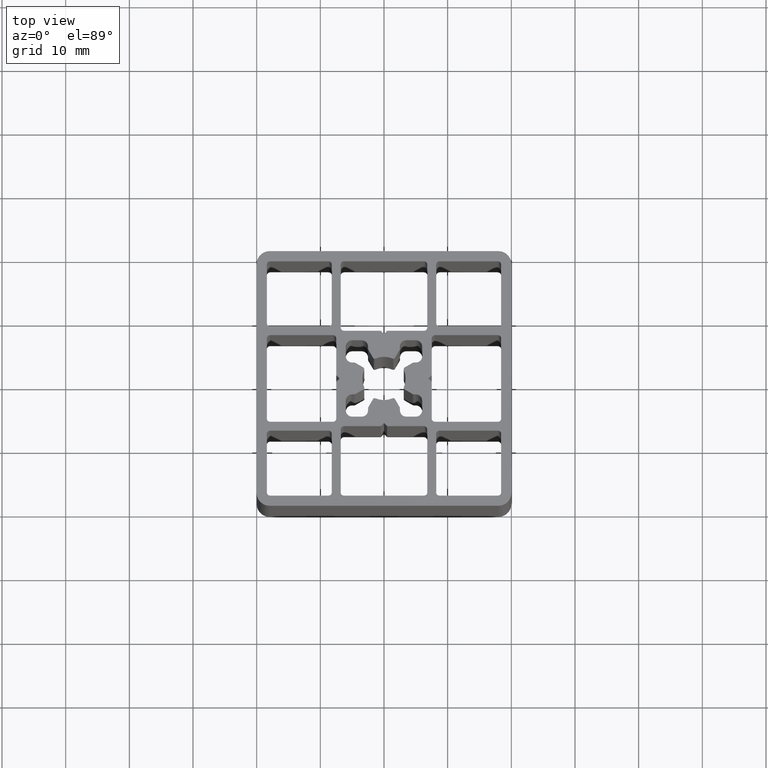
[diagram: clean part render]
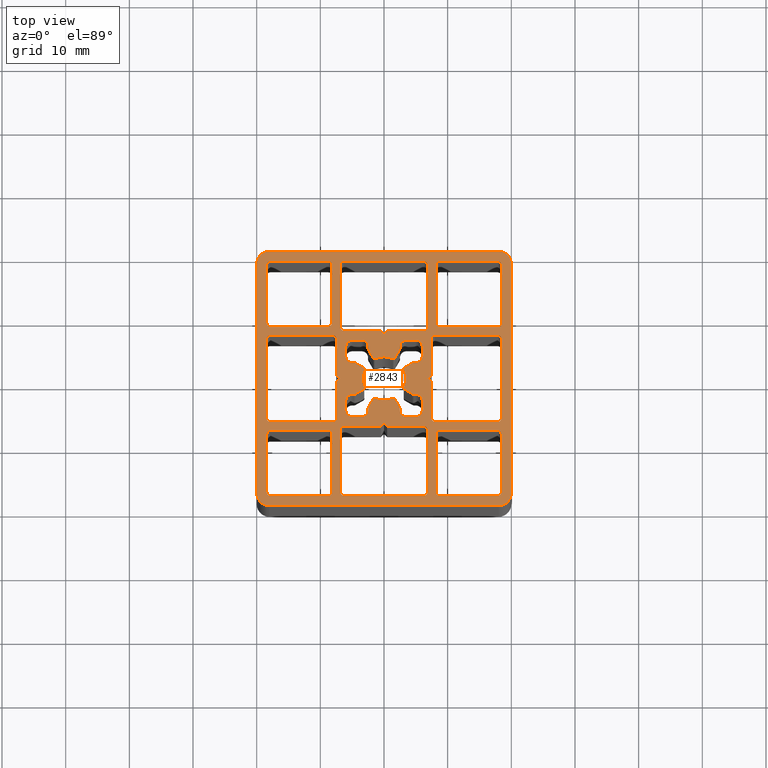
[diagram: same view with one face highlighted and labeled with its STEP entity id]
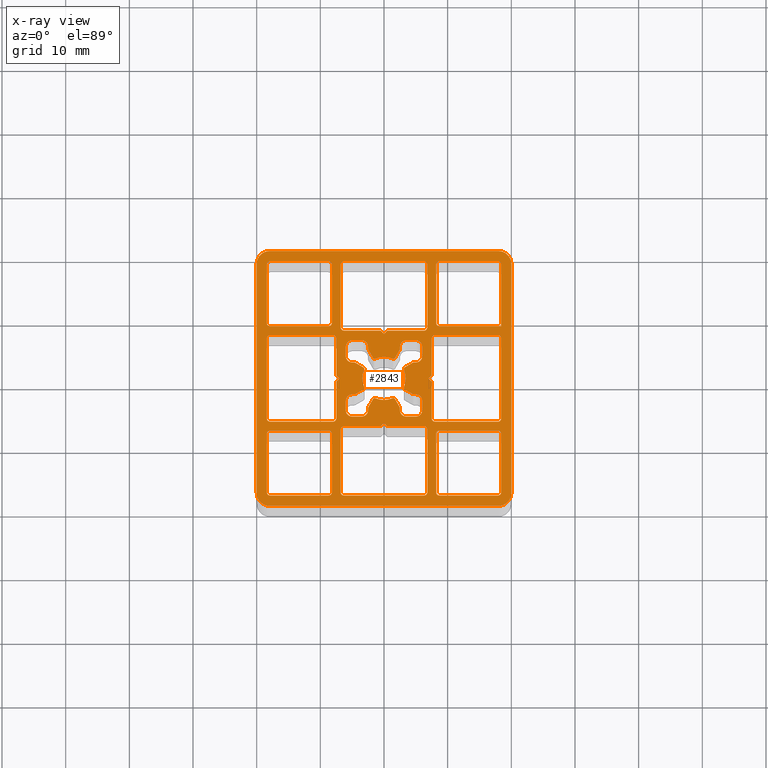
[diagram: x-ray of the same camera — body ghosted, the highlighted face saturated]
A machine part, top view. The second image highlights one B-rep face of the part: STEP entity #2843.
The next image is the same camera in x-ray: the body ghosted, the highlighted face saturated — about 0% of this face is hidden behind the body in this view.
In plain terms, the highlighted planar face has unit normal (0, 0, 1).
Its self-contained STEP definition (entity closure, byte-faithful):
#24=FACE_BOUND('',#525,.T.);
#25=FACE_BOUND('',#526,.T.);
#26=FACE_BOUND('',#527,.T.);
#27=FACE_BOUND('',#528,.T.);
#28=FACE_BOUND('',#529,.T.);
#29=FACE_BOUND('',#530,.T.);
#30=FACE_BOUND('',#531,.T.);
#31=FACE_BOUND('',#532,.T.);
#32=FACE_BOUND('',#533,.T.);
#33=CIRCLE('',#2848,0.5);
#35=CIRCLE('',#2855,0.5);
#37=CIRCLE('',#2859,0.5);
#39=CIRCLE('',#2863,0.5);
#41=CIRCLE('',#2867,0.5);
#43=CIRCLE('',#2871,0.5);
#45=CIRCLE('',#2875,0.5);
#47=CIRCLE('',#2882,0.5);
#49=CIRCLE('',#2889,0.5);
#51=CIRCLE('',#2893,0.5);
#53=CIRCLE('',#2897,0.5);
#55=CIRCLE('',#2901,0.5);
#57=CIRCLE('',#2905,0.5);
#59=CIRCLE('',#2909,0.5);
#61=CIRCLE('',#2914,0.5);
#63=CIRCLE('',#2917,0.5);
#65=CIRCLE('',#2921,0.5);
#67=CIRCLE('',#2925,0.5);
#69=CIRCLE('',#2929,0.5);
#71=CIRCLE('',#2933,3.40000593118441);
#73=CIRCLE('',#2936,0.299999841623047);
#75=CIRCLE('',#2940,0.5);
#77=CIRCLE('',#2944,0.999999252925074);
#79=CIRCLE('',#2948,0.999999252925074);
#81=CIRCLE('',#2952,0.999999252925074);
#83=CIRCLE('',#2956,0.5);
#85=CIRCLE('',#2960,0.299999841623044);
#87=CIRCLE('',#2963,3.40000593118441);
#89=CIRCLE('',#2966,0.299999841622974);
#91=CIRCLE('',#2970,0.5);
#93=CIRCLE('',#2974,0.999999252925074);
#95=CIRCLE('',#2978,0.999999252925074);
#97=CIRCLE('',#2982,0.999999252925074);
#99=CIRCLE('',#2986,0.5);
#101=CIRCLE('',#2990,0.299999841622974);
#103=CIRCLE('',#2993,3.40000593118445);
#105=CIRCLE('',#2996,0.299999841622974);
#107=CIRCLE('',#3000,0.5);
#109=CIRCLE('',#3004,0.999999252925074);
#111=CIRCLE('',#3008,0.999999252925074);
#113=CIRCLE('',#3012,0.999999252925074);
#115=CIRCLE('',#3016,0.5);
#117=CIRCLE('',#3020,0.299999841622974);
#119=CIRCLE('',#3023,3.40000593118445);
#121=CIRCLE('',#3026,0.299999841622974);
#123=CIRCLE('',#3030,0.5);
#125=CIRCLE('',#3034,0.999999252925074);
#127=CIRCLE('',#3038,0.999999252925074);
#129=CIRCLE('',#3042,0.999999252925074);
#131=CIRCLE('',#3046,0.5);
#133=CIRCLE('',#3050,0.299999841622974);
#135=CIRCLE('',#3054,0.5);
#137=CIRCLE('',#3058,0.5);
#139=CIRCLE('',#3062,0.5);
#141=CIRCLE('',#3066,0.5);
#143=CIRCLE('',#3069,0.5);
#145=CIRCLE('',#3073,0.5);
#147=CIRCLE('',#3077,0.5);
#149=CIRCLE('',#3081,0.5);
#151=CIRCLE('',#3085,0.5);
#153=CIRCLE('',#3089,0.5);
#155=CIRCLE('',#3093,0.5);
#157=CIRCLE('',#3100,0.5);
#159=CIRCLE('',#3104,1.99999999999999);
#161=CIRCLE('',#3108,2.);
#163=CIRCLE('',#3112,2.);
#165=CIRCLE('',#3116,2.);
#374=FACE_OUTER_BOUND('',#524,.T.);
#524=EDGE_LOOP('',(#2490,#2491,#2492,#2493,#2494,#2495,#2496,#2497));
#525=EDGE_LOOP('',(#2498,#2499,#2500,#2501,#2502,#2503,#2504,#2505,#2506,
#2507,#2508));
#526=EDGE_LOOP('',(#2509,#2510,#2511,#2512,#2513,#2514,#2515,#2516,#2517,
#2518,#2519));
#527=EDGE_LOOP('',(#2520,#2521,#2522,#2523,#2524,#2525,#2526,#2527,#2528,
#2529,#2530));
#528=EDGE_LOOP('',(#2531,#2532,#2533,#2534,#2535,#2536,#2537));
#529=EDGE_LOOP('',(#2538,#2539,#2540,#2541,#2542,#2543,#2544,#2545));
#530=EDGE_LOOP('',(#2546,#2547,#2548,#2549,#2550,#2551,#2552,#2553,#2554,
#2555,#2556,#2557,#2558,#2559,#2560,#2561,#2562,#2563,#2564,#2565,#2566,
#2567,#2568,#2569,#2570,#2571,#2572,#2573,#2574,#2575,#2576,#2577,#2578,
#2579,#2580,#2581,#2582,#2583,#2584,#2585,#2586,#2587,#2588,#2589,#2590,
#2591,#2592,#2593,#2594,#2595,#2596,#2597,#2598,#2599,#2600,#2601));
#531=EDGE_LOOP('',(#2602,#2603,#2604,#2605,#2606,#2607,#2608,#2609));
#532=EDGE_LOOP('',(#2610,#2611,#2612,#2613,#2614,#2615,#2616,#2617));
#533=EDGE_LOOP('',(#2618,#2619,#2620,#2621,#2622,#2623,#2624,#2625,#2626,
#2627,#2628));
#534=LINE('',#3960,#817);
#539=LINE('',#3974,#822);
#542=LINE('',#3980,#825);
#545=LINE('',#3986,#828);
#548=LINE('',#3992,#831);
#552=LINE('',#4004,#835);
#556=LINE('',#4016,#839);
#559=LINE('',#4026,#842);
#564=LINE('',#4040,#847);
#568=LINE('',#4052,#851);
#572=LINE('',#4064,#855);
#575=LINE('',#4070,#858);
#578=LINE('',#4076,#861);
#581=LINE('',#4082,#864);
#584=LINE('',#4092,#867);
#588=LINE('',#4100,#871);
#591=LINE('',#4106,#874);
#594=LINE('',#4112,#877);
#598=LINE('',#4124,#881);
#602=LINE('',#4136,#885);
#606=LINE('',#4148,#889);
#609=LINE('',#4158,#892);
#614=LINE('',#4172,#897);
#618=LINE('',#4184,#901);
#621=LINE('',#4190,#904);
#626=LINE('',#4208,#909);
#630=LINE('',#4220,#913);
#634=LINE('',#4232,#917);
#638=LINE('',#4243,#921);
#643=LINE('',#4262,#926);
#647=LINE('',#4274,#930);
#651=LINE('',#4286,#934);
#655=LINE('',#4298,#938);
#659=LINE('',#4310,#942);
#663=LINE('',#4322,#946);
#669=LINE('',#4346,#952);
#673=LINE('',#4358,#956);
#677=LINE('',#4370,#960);
#681=LINE('',#4382,#964);
#685=LINE('',#4394,#968);
#689=LINE('',#4406,#972);
#695=LINE('',#4430,#978);
#699=LINE('',#4442,#982);
#703=LINE('',#4454,#986);
#707=LINE('',#4466,#990);
#711=LINE('',#4478,#994);
#715=LINE('',#4490,#998);
#721=LINE('',#4514,#1004);
#725=LINE('',#4526,#1008);
#729=LINE('',#4538,#1012);
#733=LINE('',#4550,#1016);
#737=LINE('',#4562,#1020);
#741=LINE('',#4574,#1024);
#744=LINE('',#4584,#1027);
#749=LINE('',#4598,#1032);
#753=LINE('',#4610,#1036);
#757=LINE('',#4622,#1040);
#762=LINE('',#4640,#1045);
#766=LINE('',#4652,#1049);
#770=LINE('',#4664,#1053);
#774=LINE('',#4675,#1057);
#778=LINE('',#4688,#1061);
#782=LINE('',#4700,#1065);
#786=LINE('',#4712,#1069);
#789=LINE('',#4718,#1072);
#792=LINE('',#4724,#1075);
#795=LINE('',#4730,#1078);
#799=LINE('',#4741,#1082);
#803=LINE('',#4754,#1086);
#807=LINE('',#4766,#1090);
#811=LINE('',#4778,#1094);
#815=LINE('',#4789,#1098);
#817=VECTOR('',#3125,9.9);
#822=VECTOR('',#3138,5.8);
#825=VECTOR('',#3143,0.707106781186548);
#828=VECTOR('',#3148,0.707106781186548);
#831=VECTOR('',#3153,5.8);
#835=VECTOR('',#3165,9.9);
#839=VECTOR('',#3177,12.6);
#842=VECTOR('',#3188,9.89999999999997);
#847=VECTOR('',#3201,12.6);
#851=VECTOR('',#3213,9.89999999999998);
#855=VECTOR('',#3225,5.8);
#858=VECTOR('',#3230,0.707106781186548);
#861=VECTOR('',#3235,0.707106781186548);
#864=VECTOR('',#3240,5.8);
#867=VECTOR('',#3251,5.8);
#871=VECTOR('',#3257,0.707106781186549);
#874=VECTOR('',#3262,0.707106781186548);
#877=VECTOR('',#3267,5.8);
#881=VECTOR('',#3279,9.89999999999947);
#885=VECTOR('',#3291,12.6);
#889=VECTOR('',#3303,9.89999999999947);
#892=VECTOR('',#3314,9.19999703642828);
#897=VECTOR('',#3327,9.19998645467899);
#901=VECTOR('',#3339,9.69999703642828);
#904=VECTOR('',#3344,9.69998645467898);
#909=VECTOR('',#3363,9.19998688840061);
#913=VECTOR('',#3375,9.20000296360732);
#917=VECTOR('',#3387,9.19998688840061);
#921=VECTOR('',#3399,9.20000296360732);
#926=VECTOR('',#3418,1.406768321986);
#930=VECTOR('',#3430,0.286172336783654);
#934=VECTOR('',#3442,1.50000266055573);
#938=VECTOR('',#3454,1.50001373118524);
#942=VECTOR('',#3466,0.286169696402107);
#946=VECTOR('',#3478,1.40675836489832);
#952=VECTOR('',#3504,1.40677049726241);
#956=VECTOR('',#3516,0.286159021176881);
#960=VECTOR('',#3528,1.49999418880546);
#964=VECTOR('',#3540,1.50000266055573);
#968=VECTOR('',#3552,0.286167796441157);
#972=VECTOR('',#3564,1.40675941589281);
#978=VECTOR('',#3590,1.40676274603769);
#982=VECTOR('',#3602,0.286167884547852);
#986=VECTOR('',#3614,1.50000144932525);
#990=VECTOR('',#3626,1.49999418880546);
#994=VECTOR('',#3638,0.286168280257548);
#998=VECTOR('',#3650,1.40676841399299);
#1004=VECTOR('',#3676,1.40676686370068);
#1008=VECTOR('',#3688,0.286167691653136);
#1012=VECTOR('',#3700,1.50001373118524);
#1016=VECTOR('',#3712,1.50000144932525);
#1020=VECTOR('',#3724,0.286177752594597);
#1024=VECTOR('',#3736,1.40676655397373);
#1027=VECTOR('',#3747,9.20000296360731);
#1032=VECTOR('',#3760,9.19998645467899);
#1036=VECTOR('',#3772,9.20000296360731);
#1040=VECTOR('',#3784,9.19998645467899);
#1045=VECTOR('',#3803,9.19998688840062);
#1049=VECTOR('',#3815,9.19999703642828);
#1053=VECTOR('',#3827,9.19998688840063);
#1057=VECTOR('',#3839,9.19999703642828);
#1061=VECTOR('',#3851,12.6);
#1065=VECTOR('',#3863,9.8999999999994);
#1069=VECTOR('',#3875,5.8);
#1072=VECTOR('',#3880,0.707106781186549);
#1075=VECTOR('',#3885,0.707106781186547);
#1078=VECTOR('',#3890,5.8);
#1082=VECTOR('',#3902,9.8999999999994);
#1086=VECTOR('',#3914,36.);
#1090=VECTOR('',#3926,36.);
#1094=VECTOR('',#3938,36.);
#1098=VECTOR('',#3950,36.);
#1100=VERTEX_POINT('',#3958);
#1101=VERTEX_POINT('',#3959);
#1104=VERTEX_POINT('',#3967);
#1106=VERTEX_POINT('',#3973);
#1108=VERTEX_POINT('',#3979);
#1110=VERTEX_POINT('',#3985);
#1112=VERTEX_POINT('',#3991);
#1114=VERTEX_POINT('',#3997);
#1116=VERTEX_POINT('',#4003);
#1118=VERTEX_POINT('',#4009);
#1120=VERTEX_POINT('',#4015);
#1122=VERTEX_POINT('',#4024);
#1123=VERTEX_POINT('',#4025);
#1126=VERTEX_POINT('',#4033);
#1128=VERTEX_POINT('',#4039);
#1130=VERTEX_POINT('',#4045);
#1132=VERTEX_POINT('',#4051);
#1134=VERTEX_POINT('',#4057);
#1136=VERTEX_POINT('',#4063);
#1138=VERTEX_POINT('',#4069);
#1140=VERTEX_POINT('',#4075);
#1142=VERTEX_POINT('',#4081);
#1144=VERTEX_POINT('',#4090);
#1145=VERTEX_POINT('',#4091);
#1148=VERTEX_POINT('',#4099);
#1150=VERTEX_POINT('',#4105);
#1152=VERTEX_POINT('',#4111);
#1154=VERTEX_POINT('',#4117);
#1156=VERTEX_POINT('',#4123);
#1158=VERTEX_POINT('',#4129);
#1160=VERTEX_POINT('',#4135);
#1162=VERTEX_POINT('',#4141);
#1164=VERTEX_POINT('',#4147);
#1166=VERTEX_POINT('',#4156);
#1167=VERTEX_POINT('',#4157);
#1170=VERTEX_POINT('',#4165);
#1172=VERTEX_POINT('',#4171);
#1174=VERTEX_POINT('',#4177);
#1176=VERTEX_POINT('',#4183);
#1178=VERTEX_POINT('',#4189);
#1180=VERTEX_POINT('',#4198);
#1181=VERTEX_POINT('',#4199);
#1184=VERTEX_POINT('',#4207);
#1186=VERTEX_POINT('',#4213);
#1188=VERTEX_POINT('',#4219);
#1190=VERTEX_POINT('',#4225);
#1192=VERTEX_POINT('',#4231);
#1194=VERTEX_POINT('',#4237);
#1196=VERTEX_POINT('',#4246);
#1197=VERTEX_POINT('',#4247);
#1200=VERTEX_POINT('',#4255);
#1202=VERTEX_POINT('',#4261);
#1204=VERTEX_POINT('',#4267);
#1206=VERTEX_POINT('',#4273);
#1208=VERTEX_POINT('',#4279);
#1210=VERTEX_POINT('',#4285);
#1212=VERTEX_POINT('',#4291);
#1214=VERTEX_POINT('',#4297);
#1216=VERTEX_POINT('',#4303);
#1218=VERTEX_POINT('',#4309);
#1220=VERTEX_POINT('',#4315);
#1222=VERTEX_POINT('',#4321);
#1224=VERTEX_POINT('',#4327);
#1226=VERTEX_POINT('',#4333);
#1228=VERTEX_POINT('',#4339);
#1230=VERTEX_POINT('',#4345);
#1232=VERTEX_POINT('',#4351);
#1234=VERTEX_POINT('',#4357);
#1236=VERTEX_POINT('',#4363);
#1238=VERTEX_POINT('',#4369);
#1240=VERTEX_POINT('',#4375);
#1242=VERTEX_POINT('',#4381);
#1244=VERTEX_POINT('',#4387);
#1246=VERTEX_POINT('',#4393);
#1248=VERTEX_POINT('',#4399);
#1250=VERTEX_POINT('',#4405);
#1252=VERTEX_POINT('',#4411);
#1254=VERTEX_POINT('',#4417);
#1256=VERTEX_POINT('',#4423);
#1258=VERTEX_POINT('',#4429);
#1260=VERTEX_POINT('',#4435);
#1262=VERTEX_POINT('',#4441);
#1264=VERTEX_POINT('',#4447);
#1266=VERTEX_POINT('',#4453);
#1268=VERTEX_POINT('',#4459);
#1270=VERTEX_POINT('',#4465);
#1272=VERTEX_POINT('',#4471);
#1274=VERTEX_POINT('',#4477);
#1276=VERTEX_POINT('',#4483);
#1278=VERTEX_POINT('',#4489);
#1280=VERTEX_POINT('',#4495);
#1282=VERTEX_POINT('',#4501);
#1284=VERTEX_POINT('',#4507);
#1286=VERTEX_POINT('',#4513);
#1288=VERTEX_POINT('',#4519);
#1290=VERTEX_POINT('',#4525);
#1292=VERTEX_POINT('',#4531);
#1294=VERTEX_POINT('',#4537);
#1296=VERTEX_POINT('',#4543);
#1298=VERTEX_POINT('',#4549);
#1300=VERTEX_POINT('',#4555);
#1302=VERTEX_POINT('',#4561);
#1304=VERTEX_POINT('',#4567);
#1306=VERTEX_POINT('',#4573);
#1308=VERTEX_POINT('',#4582);
#1309=VERTEX_POINT('',#4583);
#1312=VERTEX_POINT('',#4591);
#1314=VERTEX_POINT('',#4597);
#1316=VERTEX_POINT('',#4603);
#1318=VERTEX_POINT('',#4609);
#1320=VERTEX_POINT('',#4615);
#1322=VERTEX_POINT('',#4621);
#1324=VERTEX_POINT('',#4630);
#1325=VERTEX_POINT('',#4631);
#1328=VERTEX_POINT('',#4639);
#1330=VERTEX_POINT('',#4645);
#1332=VERTEX_POINT('',#4651);
#1334=VERTEX_POINT('',#4657);
#1336=VERTEX_POINT('',#4663);
#1338=VERTEX_POINT('',#4669);
#1340=VERTEX_POINT('',#4678);
#1341=VERTEX_POINT('',#4679);
#1344=VERTEX_POINT('',#4687);
#1346=VERTEX_POINT('',#4693);
#1348=VERTEX_POINT('',#4699);
#1350=VERTEX_POINT('',#4705);
#1352=VERTEX_POINT('',#4711);
#1354=VERTEX_POINT('',#4717);
#1356=VERTEX_POINT('',#4723);
#1358=VERTEX_POINT('',#4729);
#1360=VERTEX_POINT('',#4735);
#1362=VERTEX_POINT('',#4744);
#1363=VERTEX_POINT('',#4745);
#1366=VERTEX_POINT('',#4753);
#1368=VERTEX_POINT('',#4759);
#1370=VERTEX_POINT('',#4765);
#1372=VERTEX_POINT('',#4771);
#1374=VERTEX_POINT('',#4777);
#1376=VERTEX_POINT('',#4783);
#1378=EDGE_CURVE('',#1100,#1101,#534,.T.);
#1382=EDGE_CURVE('',#1101,#1104,#33,.T.);
#1385=EDGE_CURVE('',#1104,#1106,#539,.T.);
#1388=EDGE_CURVE('',#1106,#1108,#542,.T.);
#1391=EDGE_CURVE('',#1108,#1110,#545,.T.);
#1394=EDGE_CURVE('',#1110,#1112,#548,.T.);
#1397=EDGE_CURVE('',#1112,#1114,#35,.T.);
#1400=EDGE_CURVE('',#1114,#1116,#552,.T.);
#1403=EDGE_CURVE('',#1116,#1118,#37,.T.);
#1406=EDGE_CURVE('',#1118,#1120,#556,.T.);
#1409=EDGE_CURVE('',#1120,#1100,#39,.T.);
#1411=EDGE_CURVE('',#1122,#1123,#559,.T.);
#1415=EDGE_CURVE('',#1123,#1126,#41,.T.);
#1418=EDGE_CURVE('',#1126,#1128,#564,.T.);
#1421=EDGE_CURVE('',#1128,#1130,#43,.T.);
#1424=EDGE_CURVE('',#1130,#1132,#568,.T.);
#1427=EDGE_CURVE('',#1132,#1134,#45,.T.);
#1430=EDGE_CURVE('',#1134,#1136,#572,.T.);
#1433=EDGE_CURVE('',#1136,#1138,#575,.T.);
#1436=EDGE_CURVE('',#1138,#1140,#578,.T.);
#1439=EDGE_CURVE('',#1140,#1142,#581,.T.);
#1442=EDGE_CURVE('',#1142,#1122,#47,.T.);
#1444=EDGE_CURVE('',#1144,#1145,#584,.T.);
#1448=EDGE_CURVE('',#1148,#1144,#588,.T.);
#1451=EDGE_CURVE('',#1150,#1148,#591,.T.);
#1454=EDGE_CURVE('',#1152,#1150,#594,.T.);
#1457=EDGE_CURVE('',#1154,#1152,#49,.T.);
#1460=EDGE_CURVE('',#1156,#1154,#598,.T.);
#1463=EDGE_CURVE('',#1158,#1156,#51,.T.);
#1466=EDGE_CURVE('',#1160,#1158,#602,.T.);
#1469=EDGE_CURVE('',#1162,#1160,#53,.T.);
#1472=EDGE_CURVE('',#1164,#1162,#606,.T.);
#1475=EDGE_CURVE('',#1145,#1164,#55,.T.);
#1477=EDGE_CURVE('',#1166,#1167,#609,.T.);
#1481=EDGE_CURVE('',#1167,#1170,#57,.T.);
#1484=EDGE_CURVE('',#1170,#1172,#614,.T.);
#1487=EDGE_CURVE('',#1172,#1174,#59,.T.);
#1490=EDGE_CURVE('',#1174,#1176,#618,.T.);
#1493=EDGE_CURVE('',#1176,#1178,#621,.T.);
#1496=EDGE_CURVE('',#1178,#1166,#61,.T.);
#1498=EDGE_CURVE('',#1180,#1181,#63,.T.);
#1502=EDGE_CURVE('',#1184,#1180,#626,.T.);
#1505=EDGE_CURVE('',#1186,#1184,#65,.T.);
#1508=EDGE_CURVE('',#1188,#1186,#630,.T.);
#1511=EDGE_CURVE('',#1190,#1188,#67,.T.);
#1514=EDGE_CURVE('',#1192,#1190,#634,.T.);
#1517=EDGE_CURVE('',#1194,#1192,#69,.T.);
#1520=EDGE_CURVE('',#1181,#1194,#638,.T.);
#1522=EDGE_CURVE('',#1196,#1197,#71,.T.);
#1526=EDGE_CURVE('',#1197,#1200,#73,.T.);
#1529=EDGE_CURVE('',#1200,#1202,#643,.T.);
#1532=EDGE_CURVE('',#1202,#1204,#75,.T.);
#1535=EDGE_CURVE('',#1204,#1206,#647,.T.);
#1538=EDGE_CURVE('',#1206,#1208,#77,.T.);
#1541=EDGE_CURVE('',#1208,#1210,#651,.T.);
#1544=EDGE_CURVE('',#1210,#1212,#79,.T.);
#1547=EDGE_CURVE('',#1212,#1214,#655,.T.);
#1550=EDGE_CURVE('',#1214,#1216,#81,.T.);
#1553=EDGE_CURVE('',#1216,#1218,#659,.T.);
#1556=EDGE_CURVE('',#1218,#1220,#83,.T.);
#1559=EDGE_CURVE('',#1220,#1222,#663,.T.);
#1562=EDGE_CURVE('',#1222,#1224,#85,.T.);
#1565=EDGE_CURVE('',#1224,#1226,#87,.T.);
#1568=EDGE_CURVE('',#1226,#1228,#89,.T.);
#1571=EDGE_CURVE('',#1228,#1230,#669,.T.);
#1574=EDGE_CURVE('',#1230,#1232,#91,.T.);
#1577=EDGE_CURVE('',#1232,#1234,#673,.T.);
#1580=EDGE_CURVE('',#1234,#1236,#93,.T.);
#1583=EDGE_CURVE('',#1236,#1238,#677,.T.);
#1586=EDGE_CURVE('',#1238,#1240,#95,.T.);
#1589=EDGE_CURVE('',#1240,#1242,#681,.T.);
#1592=EDGE_CURVE('',#1242,#1244,#97,.T.);
#1595=EDGE_CURVE('',#1244,#1246,#685,.T.);
#1598=EDGE_CURVE('',#1246,#1248,#99,.T.);
#1601=EDGE_CURVE('',#1248,#1250,#689,.T.);
#1604=EDGE_CURVE('',#1250,#1252,#101,.T.);
#1607=EDGE_CURVE('',#1252,#1254,#103,.T.);
#1610=EDGE_CURVE('',#1254,#1256,#105,.T.);
#1613=EDGE_CURVE('',#1256,#1258,#695,.T.);
#1616=EDGE_CURVE('',#1258,#1260,#107,.T.);
#1619=EDGE_CURVE('',#1260,#1262,#699,.T.);
#1622=EDGE_CURVE('',#1262,#1264,#109,.T.);
#1625=EDGE_CURVE('',#1264,#1266,#703,.T.);
#1628=EDGE_CURVE('',#1266,#1268,#111,.T.);
#1631=EDGE_CURVE('',#1268,#1270,#707,.T.);
#1634=EDGE_CURVE('',#1270,#1272,#113,.T.);
#1637=EDGE_CURVE('',#1272,#1274,#711,.T.);
#1640=EDGE_CURVE('',#1274,#1276,#115,.T.);
#1643=EDGE_CURVE('',#1276,#1278,#715,.T.);
#1646=EDGE_CURVE('',#1278,#1280,#117,.T.);
#1649=EDGE_CURVE('',#1280,#1282,#119,.T.);
#1652=EDGE_CURVE('',#1282,#1284,#121,.T.);
#1655=EDGE_CURVE('',#1284,#1286,#721,.T.);
#1658=EDGE_CURVE('',#1286,#1288,#123,.T.);
#1661=EDGE_CURVE('',#1288,#1290,#725,.T.);
#1664=EDGE_CURVE('',#1290,#1292,#125,.T.);
#1667=EDGE_CURVE('',#1292,#1294,#729,.T.);
#1670=EDGE_CURVE('',#1294,#1296,#127,.T.);
#1673=EDGE_CURVE('',#1296,#1298,#733,.T.);
#1676=EDGE_CURVE('',#1298,#1300,#129,.T.);
#1679=EDGE_CURVE('',#1300,#1302,#737,.T.);
#1682=EDGE_CURVE('',#1302,#1304,#131,.T.);
#1685=EDGE_CURVE('',#1304,#1306,#741,.T.);
#1688=EDGE_CURVE('',#1306,#1196,#133,.T.);
#1690=EDGE_CURVE('',#1308,#1309,#744,.T.);
#1694=EDGE_CURVE('',#1312,#1308,#135,.T.);
#1697=EDGE_CURVE('',#1314,#1312,#749,.T.);
#1700=EDGE_CURVE('',#1316,#1314,#137,.T.);
#1703=EDGE_CURVE('',#1318,#1316,#753,.T.);
#1706=EDGE_CURVE('',#1320,#1318,#139,.T.);
#1709=EDGE_CURVE('',#1322,#1320,#757,.T.);
#1712=EDGE_CURVE('',#1309,#1322,#141,.T.);
#1714=EDGE_CURVE('',#1324,#1325,#143,.T.);
#1718=EDGE_CURVE('',#1325,#1328,#762,.T.);
#1721=EDGE_CURVE('',#1328,#1330,#145,.T.);
#1724=EDGE_CURVE('',#1330,#1332,#766,.T.);
#1727=EDGE_CURVE('',#1332,#1334,#147,.T.);
#1730=EDGE_CURVE('',#1334,#1336,#770,.T.);
#1733=EDGE_CURVE('',#1336,#1338,#149,.T.);
#1736=EDGE_CURVE('',#1338,#1324,#774,.T.);
#1738=EDGE_CURVE('',#1340,#1341,#151,.T.);
#1742=EDGE_CURVE('',#1344,#1340,#778,.T.);
#1745=EDGE_CURVE('',#1346,#1344,#153,.T.);
#1748=EDGE_CURVE('',#1348,#1346,#782,.T.);
#1751=EDGE_CURVE('',#1350,#1348,#155,.T.);
#1754=EDGE_CURVE('',#1352,#1350,#786,.T.);
#1757=EDGE_CURVE('',#1354,#1352,#789,.T.);
#1760=EDGE_CURVE('',#1356,#1354,#792,.T.);
#1763=EDGE_CURVE('',#1358,#1356,#795,.T.);
#1766=EDGE_CURVE('',#1360,#1358,#157,.T.);
#1769=EDGE_CURVE('',#1341,#1360,#799,.T.);
#1771=EDGE_CURVE('',#1362,#1363,#159,.T.);
#1775=EDGE_CURVE('',#1363,#1366,#803,.T.);
#1778=EDGE_CURVE('',#1366,#1368,#161,.T.);
#1781=EDGE_CURVE('',#1368,#1370,#807,.T.);
#1784=EDGE_CURVE('',#1370,#1372,#163,.T.);
#1787=EDGE_CURVE('',#1372,#1374,#811,.T.);
#1790=EDGE_CURVE('',#1374,#1376,#165,.T.);
#1793=EDGE_CURVE('',#1376,#1362,#815,.T.);
#2490=ORIENTED_EDGE('',*,*,#1784,.F.);
#2491=ORIENTED_EDGE('',*,*,#1781,.F.);
#2492=ORIENTED_EDGE('',*,*,#1778,.F.);
#2493=ORIENTED_EDGE('',*,*,#1775,.F.);
#2494=ORIENTED_EDGE('',*,*,#1771,.F.);
#2495=ORIENTED_EDGE('',*,*,#1793,.F.);
#2496=ORIENTED_EDGE('',*,*,#1790,.F.);
#2497=ORIENTED_EDGE('',*,*,#1787,.F.);
#2498=ORIENTED_EDGE('',*,*,#1378,.T.);
#2499=ORIENTED_EDGE('',*,*,#1382,.T.);
#2500=ORIENTED_EDGE('',*,*,#1385,.T.);
#2501=ORIENTED_EDGE('',*,*,#1388,.T.);
#2502=ORIENTED_EDGE('',*,*,#1391,.T.);
#2503=ORIENTED_EDGE('',*,*,#1394,.T.);
#2504=ORIENTED_EDGE('',*,*,#1397,.T.);
#2505=ORIENTED_EDGE('',*,*,#1400,.T.);
#2506=ORIENTED_EDGE('',*,*,#1403,.T.);
#2507=ORIENTED_EDGE('',*,*,#1406,.T.);
#2508=ORIENTED_EDGE('',*,*,#1409,.T.);
#2509=ORIENTED_EDGE('',*,*,#1411,.T.);
#2510=ORIENTED_EDGE('',*,*,#1415,.T.);
#2511=ORIENTED_EDGE('',*,*,#1418,.T.);
#2512=ORIENTED_EDGE('',*,*,#1421,.T.);
#2513=ORIENTED_EDGE('',*,*,#1424,.T.);
#2514=ORIENTED_EDGE('',*,*,#1427,.T.);
#2515=ORIENTED_EDGE('',*,*,#1430,.T.);
#2516=ORIENTED_EDGE('',*,*,#1433,.T.);
#2517=ORIENTED_EDGE('',*,*,#1436,.T.);
#2518=ORIENTED_EDGE('',*,*,#1439,.T.);
#2519=ORIENTED_EDGE('',*,*,#1442,.T.);
#2520=ORIENTED_EDGE('',*,*,#1444,.T.);
#2521=ORIENTED_EDGE('',*,*,#1475,.T.);
#2522=ORIENTED_EDGE('',*,*,#1472,.T.);
#2523=ORIENTED_EDGE('',*,*,#1469,.T.);
#2524=ORIENTED_EDGE('',*,*,#1466,.T.);
#2525=ORIENTED_EDGE('',*,*,#1463,.T.);
#2526=ORIENTED_EDGE('',*,*,#1460,.T.);
#2527=ORIENTED_EDGE('',*,*,#1457,.T.);
#2528=ORIENTED_EDGE('',*,*,#1454,.T.);
#2529=ORIENTED_EDGE('',*,*,#1451,.T.);
#2530=ORIENTED_EDGE('',*,*,#1448,.T.);
#2531=ORIENTED_EDGE('',*,*,#1477,.T.);
#2532=ORIENTED_EDGE('',*,*,#1481,.T.);
#2533=ORIENTED_EDGE('',*,*,#1484,.T.);
#2534=ORIENTED_EDGE('',*,*,#1487,.T.);
#2535=ORIENTED_EDGE('',*,*,#1490,.T.);
#2536=ORIENTED_EDGE('',*,*,#1493,.T.);
#2537=ORIENTED_EDGE('',*,*,#1496,.T.);
#2538=ORIENTED_EDGE('',*,*,#1498,.T.);
#2539=ORIENTED_EDGE('',*,*,#1520,.T.);
#2540=ORIENTED_EDGE('',*,*,#1517,.T.);
#2541=ORIENTED_EDGE('',*,*,#1514,.T.);
#2542=ORIENTED_EDGE('',*,*,#1511,.T.);
#2543=ORIENTED_EDGE('',*,*,#1508,.T.);
#2544=ORIENTED_EDGE('',*,*,#1505,.T.);
#2545=ORIENTED_EDGE('',*,*,#1502,.T.);
#2546=ORIENTED_EDGE('',*,*,#1522,.T.);
#2547=ORIENTED_EDGE('',*,*,#1526,.T.);
#2548=ORIENTED_EDGE('',*,*,#1529,.T.);
#2549=ORIENTED_EDGE('',*,*,#1532,.T.);
#2550=ORIENTED_EDGE('',*,*,#1535,.T.);
#2551=ORIENTED_EDGE('',*,*,#1538,.T.);
#2552=ORIENTED_EDGE('',*,*,#1541,.T.);
#2553=ORIENTED_EDGE('',*,*,#1544,.T.);
#2554=ORIENTED_EDGE('',*,*,#1547,.T.);
#2555=ORIENTED_EDGE('',*,*,#1550,.T.);
#2556=ORIENTED_EDGE('',*,*,#1553,.T.);
#2557=ORIENTED_EDGE('',*,*,#1556,.T.);
#2558=ORIENTED_EDGE('',*,*,#1559,.T.);
#2559=ORIENTED_EDGE('',*,*,#1562,.T.);
#2560=ORIENTED_EDGE('',*,*,#1565,.T.);
#2561=ORIENTED_EDGE('',*,*,#1568,.T.);
#2562=ORIENTED_EDGE('',*,*,#1571,.T.);
#2563=ORIENTED_EDGE('',*,*,#1574,.T.);
#2564=ORIENTED_EDGE('',*,*,#1577,.T.);
#2565=ORIENTED_EDGE('',*,*,#1580,.T.);
#2566=ORIENTED_EDGE('',*,*,#1583,.T.);
#2567=ORIENTED_EDGE('',*,*,#1586,.T.);
#2568=ORIENTED_EDGE('',*,*,#1589,.T.);
#2569=ORIENTED_EDGE('',*,*,#1592,.T.);
#2570=ORIENTED_EDGE('',*,*,#1595,.T.);
#2571=ORIENTED_EDGE('',*,*,#1598,.T.);
#2572=ORIENTED_EDGE('',*,*,#1601,.T.);
#2573=ORIENTED_EDGE('',*,*,#1604,.T.);
#2574=ORIENTED_EDGE('',*,*,#1607,.T.);
#2575=ORIENTED_EDGE('',*,*,#1610,.T.);
#2576=ORIENTED_EDGE('',*,*,#1613,.T.);
#2577=ORIENTED_EDGE('',*,*,#1616,.T.);
#2578=ORIENTED_EDGE('',*,*,#1619,.T.);
#2579=ORIENTED_EDGE('',*,*,#1622,.T.);
#2580=ORIENTED_EDGE('',*,*,#1625,.T.);
#2581=ORIENTED_EDGE('',*,*,#1628,.T.);
#2582=ORIENTED_EDGE('',*,*,#1631,.T.);
#2583=ORIENTED_EDGE('',*,*,#1634,.T.);
#2584=ORIENTED_EDGE('',*,*,#1637,.T.);
#2585=ORIENTED_EDGE('',*,*,#1640,.T.);
#2586=ORIENTED_EDGE('',*,*,#1643,.T.);
#2587=ORIENTED_EDGE('',*,*,#1646,.T.);
#2588=ORIENTED_EDGE('',*,*,#1649,.T.);
#2589=ORIENTED_EDGE('',*,*,#1652,.T.);
#2590=ORIENTED_EDGE('',*,*,#1655,.T.);
#2591=ORIENTED_EDGE('',*,*,#1658,.T.);
#2592=ORIENTED_EDGE('',*,*,#1661,.T.);
#2593=ORIENTED_EDGE('',*,*,#1664,.T.);
#2594=ORIENTED_EDGE('',*,*,#1667,.T.);
#2595=ORIENTED_EDGE('',*,*,#1670,.T.);
#2596=ORIENTED_EDGE('',*,*,#1673,.T.);
#2597=ORIENTED_EDGE('',*,*,#1676,.T.);
#2598=ORIENTED_EDGE('',*,*,#1679,.T.);
#2599=ORIENTED_EDGE('',*,*,#1682,.T.);
#2600=ORIENTED_EDGE('',*,*,#1685,.T.);
#2601=ORIENTED_EDGE('',*,*,#1688,.T.);
#2602=ORIENTED_EDGE('',*,*,#1690,.T.);
#2603=ORIENTED_EDGE('',*,*,#1712,.T.);
#2604=ORIENTED_EDGE('',*,*,#1709,.T.);
#2605=ORIENTED_EDGE('',*,*,#1706,.T.);
#2606=ORIENTED_EDGE('',*,*,#1703,.T.);
#2607=ORIENTED_EDGE('',*,*,#1700,.T.);
#2608=ORIENTED_EDGE('',*,*,#1697,.T.);
#2609=ORIENTED_EDGE('',*,*,#1694,.T.);
#2610=ORIENTED_EDGE('',*,*,#1714,.T.);
#2611=ORIENTED_EDGE('',*,*,#1718,.T.);
#2612=ORIENTED_EDGE('',*,*,#1721,.T.);
#2613=ORIENTED_EDGE('',*,*,#1724,.T.);
#2614=ORIENTED_EDGE('',*,*,#1727,.T.);
#2615=ORIENTED_EDGE('',*,*,#1730,.T.);
#2616=ORIENTED_EDGE('',*,*,#1733,.T.);
#2617=ORIENTED_EDGE('',*,*,#1736,.T.);
#2618=ORIENTED_EDGE('',*,*,#1738,.T.);
#2619=ORIENTED_EDGE('',*,*,#1769,.T.);
#2620=ORIENTED_EDGE('',*,*,#1766,.T.);
#2621=ORIENTED_EDGE('',*,*,#1763,.T.);
#2622=ORIENTED_EDGE('',*,*,#1760,.T.);
#2623=ORIENTED_EDGE('',*,*,#1757,.T.);
#2624=ORIENTED_EDGE('',*,*,#1754,.T.);
#2625=ORIENTED_EDGE('',*,*,#1751,.T.);
#2626=ORIENTED_EDGE('',*,*,#1748,.T.);
#2627=ORIENTED_EDGE('',*,*,#1745,.T.);
#2628=ORIENTED_EDGE('',*,*,#1742,.T.);
#2702=PLANE('',#3120);
#2843=ADVANCED_FACE('',(#374,#24,#25,#26,#27,#28,#29,#30,#31,#32),#2702,
 .T.);
#2848=AXIS2_PLACEMENT_3D('',#3968,#3131,#3132);
#2855=AXIS2_PLACEMENT_3D('',#3998,#3158,#3159);
#2859=AXIS2_PLACEMENT_3D('',#4010,#3170,#3171);
#2863=AXIS2_PLACEMENT_3D('',#4021,#3182,#3183);
#2867=AXIS2_PLACEMENT_3D('',#4034,#3194,#3195);
#2871=AXIS2_PLACEMENT_3D('',#4046,#3206,#3207);
#2875=AXIS2_PLACEMENT_3D('',#4058,#3218,#3219);
#2882=AXIS2_PLACEMENT_3D('',#4087,#3245,#3246);
#2889=AXIS2_PLACEMENT_3D('',#4118,#3272,#3273);
#2893=AXIS2_PLACEMENT_3D('',#4130,#3284,#3285);
#2897=AXIS2_PLACEMENT_3D('',#4142,#3296,#3297);
#2901=AXIS2_PLACEMENT_3D('',#4153,#3308,#3309);
#2905=AXIS2_PLACEMENT_3D('',#4166,#3320,#3321);
#2909=AXIS2_PLACEMENT_3D('',#4178,#3332,#3333);
#2914=AXIS2_PLACEMENT_3D('',#4195,#3349,#3350);
#2917=AXIS2_PLACEMENT_3D('',#4200,#3355,#3356);
#2921=AXIS2_PLACEMENT_3D('',#4214,#3368,#3369);
#2925=AXIS2_PLACEMENT_3D('',#4226,#3380,#3381);
#2929=AXIS2_PLACEMENT_3D('',#4238,#3392,#3393);
#2933=AXIS2_PLACEMENT_3D('',#4248,#3403,#3404);
#2936=AXIS2_PLACEMENT_3D('',#4256,#3411,#3412);
#2940=AXIS2_PLACEMENT_3D('',#4268,#3423,#3424);
#2944=AXIS2_PLACEMENT_3D('',#4280,#3435,#3436);
#2948=AXIS2_PLACEMENT_3D('',#4292,#3447,#3448);
#2952=AXIS2_PLACEMENT_3D('',#4304,#3459,#3460);
#2956=AXIS2_PLACEMENT_3D('',#4316,#3471,#3472);
#2960=AXIS2_PLACEMENT_3D('',#4328,#3483,#3484);
#2963=AXIS2_PLACEMENT_3D('',#4334,#3490,#3491);
#2966=AXIS2_PLACEMENT_3D('',#4340,#3497,#3498);
#2970=AXIS2_PLACEMENT_3D('',#4352,#3509,#3510);
#2974=AXIS2_PLACEMENT_3D('',#4364,#3521,#3522);
#2978=AXIS2_PLACEMENT_3D('',#4376,#3533,#3534);
#2982=AXIS2_PLACEMENT_3D('',#4388,#3545,#3546);
#2986=AXIS2_PLACEMENT_3D('',#4400,#3557,#3558);
#2990=AXIS2_PLACEMENT_3D('',#4412,#3569,#3570);
#2993=AXIS2_PLACEMENT_3D('',#4418,#3576,#3577);
#2996=AXIS2_PLACEMENT_3D('',#4424,#3583,#3584);
#3000=AXIS2_PLACEMENT_3D('',#4436,#3595,#3596);
#3004=AXIS2_PLACEMENT_3D('',#4448,#3607,#3608);
#3008=AXIS2_PLACEMENT_3D('',#4460,#3619,#3620);
#3012=AXIS2_PLACEMENT_3D('',#4472,#3631,#3632);
#3016=AXIS2_PLACEMENT_3D('',#4484,#3643,#3644);
#3020=AXIS2_PLACEMENT_3D('',#4496,#3655,#3656);
#3023=AXIS2_PLACEMENT_3D('',#4502,#3662,#3663);
#3026=AXIS2_PLACEMENT_3D('',#4508,#3669,#3670);
#3030=AXIS2_PLACEMENT_3D('',#4520,#3681,#3682);
#3034=AXIS2_PLACEMENT_3D('',#4532,#3693,#3694);
#3038=AXIS2_PLACEMENT_3D('',#4544,#3705,#3706);
#3042=AXIS2_PLACEMENT_3D('',#4556,#3717,#3718);
#3046=AXIS2_PLACEMENT_3D('',#4568,#3729,#3730);
#3050=AXIS2_PLACEMENT_3D('',#4579,#3741,#3742);
#3054=AXIS2_PLACEMENT_3D('',#4592,#3753,#3754);
#3058=AXIS2_PLACEMENT_3D('',#4604,#3765,#3766);
#3062=AXIS2_PLACEMENT_3D('',#4616,#3777,#3778);
#3066=AXIS2_PLACEMENT_3D('',#4627,#3789,#3790);
#3069=AXIS2_PLACEMENT_3D('',#4632,#3795,#3796);
#3073=AXIS2_PLACEMENT_3D('',#4646,#3808,#3809);
#3077=AXIS2_PLACEMENT_3D('',#4658,#3820,#3821);
#3081=AXIS2_PLACEMENT_3D('',#4670,#3832,#3833);
#3085=AXIS2_PLACEMENT_3D('',#4680,#3843,#3844);
#3089=AXIS2_PLACEMENT_3D('',#4694,#3856,#3857);
#3093=AXIS2_PLACEMENT_3D('',#4706,#3868,#3869);
#3100=AXIS2_PLACEMENT_3D('',#4736,#3895,#3896);
#3104=AXIS2_PLACEMENT_3D('',#4746,#3906,#3907);
#3108=AXIS2_PLACEMENT_3D('',#4760,#3919,#3920);
#3112=AXIS2_PLACEMENT_3D('',#4772,#3931,#3932);
#3116=AXIS2_PLACEMENT_3D('',#4784,#3943,#3944);
#3120=AXIS2_PLACEMENT_3D('',#4792,#3954,#3955);
#3125=DIRECTION('',(0.,-1.,0.));
#3131=DIRECTION('center_axis',(0.,0.,-1.));
#3132=DIRECTION('ref_axis',(0.,1.,0.));
#3138=DIRECTION('',(-1.,0.,0.));
#3143=DIRECTION('',(-0.707106781186547,-0.707106781186548,0.));
#3148=DIRECTION('',(-0.707106781186548,0.707106781186547,0.));
#3153=DIRECTION('',(-1.,0.,0.));
#3158=DIRECTION('center_axis',(0.,0.,-1.));
#3159=DIRECTION('ref_axis',(1.,0.,0.));
#3165=DIRECTION('',(0.,1.,0.));
#3170=DIRECTION('center_axis',(0.,0.,-1.));
#3171=DIRECTION('ref_axis',(0.,-1.,0.));
#3177=DIRECTION('',(1.,1.76225876924628E-16,0.));
#3182=DIRECTION('center_axis',(0.,0.,-1.));
#3183=DIRECTION('ref_axis',(-1.,0.,0.));
#3188=DIRECTION('',(3.36431219583382E-16,-1.,0.));
#3194=DIRECTION('center_axis',(0.,0.,-1.));
#3195=DIRECTION('ref_axis',(0.,-1.,0.));
#3201=DIRECTION('',(-1.,-1.76225876924628E-16,0.));
#3206=DIRECTION('center_axis',(0.,0.,-1.));
#3207=DIRECTION('ref_axis',(-1.,0.,0.));
#3213=DIRECTION('',(3.36431219583382E-16,1.,0.));
#3218=DIRECTION('center_axis',(0.,0.,-1.));
#3219=DIRECTION('ref_axis',(0.,1.,0.));
#3225=DIRECTION('',(1.,0.,0.));
#3230=DIRECTION('',(0.707106781186547,0.707106781186548,0.));
#3235=DIRECTION('',(0.707106781186547,-0.707106781186548,0.));
#3240=DIRECTION('',(1.,0.,0.));
#3245=DIRECTION('center_axis',(0.,0.,-1.));
#3246=DIRECTION('ref_axis',(1.,0.,0.));
#3251=DIRECTION('',(0.,-1.,0.));
#3257=DIRECTION('',(-0.707106781186547,-0.707106781186548,0.));
#3262=DIRECTION('',(0.707106781186548,-0.707106781186547,0.));
#3267=DIRECTION('',(0.,-1.,0.));
#3272=DIRECTION('center_axis',(0.,0.,-1.));
#3273=DIRECTION('ref_axis',(1.,2.22044604925031E-15,0.));
#3279=DIRECTION('',(1.,-2.24287479722266E-16,0.));
#3284=DIRECTION('center_axis',(0.,0.,-1.));
#3285=DIRECTION('ref_axis',(0.,1.,0.));
#3291=DIRECTION('',(-5.28677630773884E-16,1.,0.));
#3296=DIRECTION('center_axis',(0.,0.,-1.));
#3297=DIRECTION('ref_axis',(-1.,0.,0.));
#3303=DIRECTION('',(-1.,-2.24287479722266E-16,0.));
#3308=DIRECTION('center_axis',(0.,0.,-1.));
#3309=DIRECTION('ref_axis',(0.,-1.,0.));
#3314=DIRECTION('',(-2.41352909186627E-16,1.,0.));
#3320=DIRECTION('center_axis',(0.,0.,-1.));
#3321=DIRECTION('ref_axis',(0.,-1.,0.));
#3327=DIRECTION('',(1.,2.41353186788772E-16,0.));
#3332=DIRECTION('center_axis',(0.,0.,-1.));
#3333=DIRECTION('ref_axis',(-1.,0.,0.));
#3339=DIRECTION('',(-4.57824067556194E-16,-1.,0.));
#3344=DIRECTION('',(-1.,-3.43368425248558E-16,0.));
#3349=DIRECTION('center_axis',(0.,0.,-1.));
#3350=DIRECTION('ref_axis',(1.,0.,0.));
#3355=DIRECTION('center_axis',(0.,0.,-1.));
#3356=DIRECTION('ref_axis',(-1.,0.,0.));
#3363=DIRECTION('',(-1.,-2.41353175410485E-16,0.));
#3368=DIRECTION('center_axis',(0.,0.,-1.));
#3369=DIRECTION('ref_axis',(0.,-1.,0.));
#3375=DIRECTION('',(3.62029130539488E-16,-1.,0.));
#3380=DIRECTION('center_axis',(0.,0.,-1.));
#3381=DIRECTION('ref_axis',(1.,0.,0.));
#3387=DIRECTION('',(1.,2.41353175410485E-16,0.));
#3392=DIRECTION('center_axis',(0.,0.,-1.));
#3393=DIRECTION('ref_axis',(0.,1.,0.));
#3399=DIRECTION('',(-4.82705507385984E-16,1.,0.));
#3403=DIRECTION('center_axis',(0.,0.,-1.));
#3404=DIRECTION('ref_axis',(-0.917711707460071,0.397247054099487,0.));
#3411=DIRECTION('center_axis',(0.,0.,1.));
#3412=DIRECTION('ref_axis',(-0.917711707460072,0.397247054099486,0.));
#3418=DIRECTION('',(-0.866026528185199,0.499998052475697,0.));
#3423=DIRECTION('center_axis',(0.,0.,1.));
#3424=DIRECTION('ref_axis',(-0.499998052475696,-0.8660265281852,0.));
#3430=DIRECTION('',(-1.,0.,0.));
#3435=DIRECTION('center_axis',(0.,0.,-1.));
#3436=DIRECTION('ref_axis',(-1.,0.,0.));
#3442=DIRECTION('',(0.,1.,0.));
#3447=DIRECTION('center_axis',(0.,0.,-1.));
#3448=DIRECTION('ref_axis',(0.,1.,0.));
#3454=DIRECTION('',(1.,0.,0.));
#3459=DIRECTION('center_axis',(0.,0.,-1.));
#3460=DIRECTION('ref_axis',(1.,5.5511192702278E-16,0.));
#3466=DIRECTION('',(0.,-1.,0.));
#3471=DIRECTION('center_axis',(0.,0.,1.));
#3472=DIRECTION('ref_axis',(1.,0.,0.));
#3478=DIRECTION('',(0.500000094226046,-0.866025349382999,0.));
#3483=DIRECTION('center_axis',(0.,0.,1.));
#3484=DIRECTION('ref_axis',(0.866025349382999,0.500000094226046,0.));
#3490=DIRECTION('center_axis',(0.,0.,-1.));
#3491=DIRECTION('ref_axis',(0.397249308430472,0.917710731631439,0.));
#3497=DIRECTION('center_axis',(0.,0.,1.));
#3498=DIRECTION('ref_axis',(0.397249308430471,0.91771073163144,0.));
#3504=DIRECTION('',(0.499998052475697,0.866026528185199,0.));
#3509=DIRECTION('center_axis',(0.,0.,1.));
#3510=DIRECTION('ref_axis',(-0.8660265281852,0.499998052475696,0.));
#3516=DIRECTION('',(0.,1.,0.));
#3521=DIRECTION('center_axis',(0.,0.,-1.));
#3522=DIRECTION('ref_axis',(0.,1.,0.));
#3528=DIRECTION('',(1.,0.,0.));
#3533=DIRECTION('center_axis',(0.,0.,-1.));
#3534=DIRECTION('ref_axis',(1.,0.,0.));
#3540=DIRECTION('',(0.,-1.,0.));
#3545=DIRECTION('center_axis',(0.,0.,-1.));
#3546=DIRECTION('ref_axis',(-5.5511192702278E-16,-1.,0.));
#3552=DIRECTION('',(-1.,0.,0.));
#3557=DIRECTION('center_axis',(0.,0.,1.));
#3558=DIRECTION('ref_axis',(-1.11022302462516E-15,-1.,0.));
#3564=DIRECTION('',(-0.866025349382999,-0.500000094226046,0.));
#3569=DIRECTION('center_axis',(0.,0.,1.));
#3570=DIRECTION('ref_axis',(0.500000094226046,-0.866025349382999,0.));
#3576=DIRECTION('center_axis',(0.,0.,-1.));
#3577=DIRECTION('ref_axis',(0.917710409014812,-0.397250053726701,0.));
#3583=DIRECTION('center_axis',(0.,0.,1.));
#3584=DIRECTION('ref_axis',(0.917710409014812,-0.3972500537267,0.));
#3590=DIRECTION('',(0.866026528185199,-0.499998052475697,0.));
#3595=DIRECTION('center_axis',(0.,0.,1.));
#3596=DIRECTION('ref_axis',(0.499998052475696,0.8660265281852,0.));
#3602=DIRECTION('',(1.,0.,0.));
#3607=DIRECTION('center_axis',(0.,0.,-1.));
#3608=DIRECTION('ref_axis',(1.,0.,0.));
#3614=DIRECTION('',(0.,-1.,0.));
#3619=DIRECTION('center_axis',(0.,0.,-1.));
#3620=DIRECTION('ref_axis',(5.55111927022781E-16,-1.,0.));
#3626=DIRECTION('',(-1.,-1.48030310105308E-15,0.));
#3631=DIRECTION('center_axis',(0.,0.,-1.));
#3632=DIRECTION('ref_axis',(-1.,0.,0.));
#3638=DIRECTION('',(0.,1.,0.));
#3643=DIRECTION('center_axis',(0.,0.,1.));
#3644=DIRECTION('ref_axis',(-1.,-2.22044604925031E-15,0.));
#3650=DIRECTION('',(-0.500000094226046,0.866025349382999,0.));
#3655=DIRECTION('center_axis',(0.,0.,1.));
#3656=DIRECTION('ref_axis',(-0.866025349382999,-0.500000094226045,0.));
#3662=DIRECTION('center_axis',(0.,0.,-1.));
#3663=DIRECTION('ref_axis',(-0.397248324595225,-0.917711157503431,0.));
#3669=DIRECTION('center_axis',(0.,0.,1.));
#3670=DIRECTION('ref_axis',(-0.397248324595225,-0.917711157503431,0.));
#3676=DIRECTION('',(-0.499998052475698,-0.866026528185199,0.));
#3681=DIRECTION('center_axis',(0.,0.,1.));
#3682=DIRECTION('ref_axis',(0.866026528185199,-0.499998052475698,0.));
#3688=DIRECTION('',(0.,-1.,0.));
#3693=DIRECTION('center_axis',(0.,0.,-1.));
#3694=DIRECTION('ref_axis',(0.,-1.,0.));
#3700=DIRECTION('',(-1.,0.,0.));
#3705=DIRECTION('center_axis',(0.,0.,-1.));
#3706=DIRECTION('ref_axis',(-1.,0.,0.));
#3712=DIRECTION('',(0.,1.,0.));
#3717=DIRECTION('center_axis',(0.,0.,-1.));
#3718=DIRECTION('ref_axis',(0.,1.,0.));
#3724=DIRECTION('',(1.,0.,0.));
#3729=DIRECTION('center_axis',(0.,0.,1.));
#3730=DIRECTION('ref_axis',(0.,1.,0.));
#3736=DIRECTION('',(0.866025349382999,0.500000094226046,0.));
#3741=DIRECTION('center_axis',(0.,0.,1.));
#3742=DIRECTION('ref_axis',(-0.500000094226047,0.866025349382998,0.));
#3747=DIRECTION('',(0.,-1.,0.));
#3753=DIRECTION('center_axis',(0.,0.,-1.));
#3754=DIRECTION('ref_axis',(1.,0.,0.));
#3760=DIRECTION('',(1.,2.41353186788772E-16,0.));
#3765=DIRECTION('center_axis',(0.,0.,-1.));
#3766=DIRECTION('ref_axis',(0.,1.,0.));
#3772=DIRECTION('',(-3.62029130539488E-16,1.,0.));
#3777=DIRECTION('center_axis',(0.,0.,-1.));
#3778=DIRECTION('ref_axis',(-1.,0.,0.));
#3784=DIRECTION('',(-1.,-2.41353186788772E-16,0.));
#3789=DIRECTION('center_axis',(0.,0.,-1.));
#3790=DIRECTION('ref_axis',(0.,-1.,0.));
#3795=DIRECTION('center_axis',(0.,0.,-1.));
#3796=DIRECTION('ref_axis',(0.,1.,0.));
#3803=DIRECTION('',(-1.,-2.41353175410485E-16,0.));
#3808=DIRECTION('center_axis',(0.,0.,-1.));
#3809=DIRECTION('ref_axis',(1.,0.,0.));
#3815=DIRECTION('',(-4.82705818373254E-16,1.,0.));
#3820=DIRECTION('center_axis',(0.,0.,-1.));
#3821=DIRECTION('ref_axis',(0.,-1.,0.));
#3827=DIRECTION('',(1.,2.41353175410484E-16,0.));
#3832=DIRECTION('center_axis',(0.,0.,-1.));
#3833=DIRECTION('ref_axis',(-1.,-4.44089209850062E-15,0.));
#3839=DIRECTION('',(2.41352909186627E-16,-1.,0.));
#3843=DIRECTION('center_axis',(0.,0.,-1.));
#3844=DIRECTION('ref_axis',(0.,1.,0.));
#3851=DIRECTION('',(0.,-1.,0.));
#3856=DIRECTION('center_axis',(0.,0.,-1.));
#3857=DIRECTION('ref_axis',(-1.,0.,0.));
#3863=DIRECTION('',(1.,3.36431219583401E-16,0.));
#3868=DIRECTION('center_axis',(0.,0.,-1.));
#3869=DIRECTION('ref_axis',(0.,-1.,0.));
#3875=DIRECTION('',(0.,1.,0.));
#3880=DIRECTION('',(0.707106781186546,0.707106781186549,0.));
#3885=DIRECTION('',(-0.707106781186548,0.707106781186547,0.));
#3890=DIRECTION('',(0.,1.,0.));
#3895=DIRECTION('center_axis',(0.,0.,-1.));
#3896=DIRECTION('ref_axis',(1.,-2.22044604925031E-15,0.));
#3902=DIRECTION('',(-1.,3.36431219583401E-16,0.));
#3906=DIRECTION('center_axis',(0.,0.,-1.));
#3907=DIRECTION('ref_axis',(1.,0.,0.));
#3914=DIRECTION('',(0.,1.,0.));
#3919=DIRECTION('center_axis',(0.,0.,-1.));
#3920=DIRECTION('ref_axis',(0.,-1.,0.));
#3926=DIRECTION('',(1.,0.,0.));
#3931=DIRECTION('center_axis',(0.,0.,-1.));
#3932=DIRECTION('ref_axis',(-1.,0.,0.));
#3938=DIRECTION('',(0.,-1.,0.));
#3943=DIRECTION('center_axis',(0.,0.,-1.));
#3944=DIRECTION('ref_axis',(0.,1.,0.));
#3950=DIRECTION('',(-1.,0.,0.));
#3954=DIRECTION('center_axis',(0.,0.,1.));
#3955=DIRECTION('ref_axis',(1.,0.,0.));
#3958=CARTESIAN_POINT('',(6.8,17.8999970364283,100.));
#3959=CARTESIAN_POINT('',(6.8,7.99999703642828,100.));
#3960=CARTESIAN_POINT('',(6.8,3.99999851821414,100.));
#3967=CARTESIAN_POINT('',(6.3,7.49999703642828,100.));
#3968=CARTESIAN_POINT('Origin',(6.3,7.99999703642828,100.));
#3973=CARTESIAN_POINT('',(0.5,7.49999703642828,100.));
#3974=CARTESIAN_POINT('',(0.25,7.49999703642828,100.));
#3979=CARTESIAN_POINT('',(9.38216637455203E-17,6.99999703642828,100.));
#3980=CARTESIAN_POINT('',(-1.74999925910707,5.24999777732121,100.));
#3985=CARTESIAN_POINT('',(-0.5,7.49999703642828,100.));
#3986=CARTESIAN_POINT('',(1.49999925910707,5.49999777732121,100.));
#3991=CARTESIAN_POINT('',(-6.3,7.49999703642828,100.));
#3992=CARTESIAN_POINT('',(-3.15,7.49999703642828,100.));
#3997=CARTESIAN_POINT('',(-6.8,7.99999703642828,100.));
#3998=CARTESIAN_POINT('Origin',(-6.3,7.99999703642828,100.));
#4003=CARTESIAN_POINT('',(-6.8,17.8999970364283,100.));
#4004=CARTESIAN_POINT('',(-6.8,8.94999851821414,100.));
#4009=CARTESIAN_POINT('',(-6.3,18.3999970364283,100.));
#4010=CARTESIAN_POINT('Origin',(-6.3,17.8999970364283,100.));
#4015=CARTESIAN_POINT('',(6.3,18.3999970364283,100.));
#4016=CARTESIAN_POINT('',(3.15,18.3999970364283,100.));
#4021=CARTESIAN_POINT('Origin',(6.3,17.8999970364283,100.));
#4024=CARTESIAN_POINT('',(6.8,-8.00000296360734,100.));
#4025=CARTESIAN_POINT('',(6.8,-17.9000029636073,100.));
#4026=CARTESIAN_POINT('',(6.8,-8.95000148180366,100.));
#4033=CARTESIAN_POINT('',(6.3,-18.4000029636073,100.));
#4034=CARTESIAN_POINT('Origin',(6.3,-17.9000029636073,100.));
#4039=CARTESIAN_POINT('',(-6.3,-18.4000029636073,100.));
#4040=CARTESIAN_POINT('',(-3.15,-18.4000029636073,100.));
#4045=CARTESIAN_POINT('',(-6.8,-17.9000029636073,100.));
#4046=CARTESIAN_POINT('Origin',(-6.3,-17.9000029636073,100.));
#4051=CARTESIAN_POINT('',(-6.8,-8.00000296360734,100.));
#4052=CARTESIAN_POINT('',(-6.8,-4.00000148180367,100.));
#4057=CARTESIAN_POINT('',(-6.3,-7.50000296360734,100.));
#4058=CARTESIAN_POINT('Origin',(-6.3,-8.00000296360734,100.));
#4063=CARTESIAN_POINT('',(-0.5,-7.50000296360734,100.));
#4064=CARTESIAN_POINT('',(-0.25,-7.50000296360734,100.));
#4069=CARTESIAN_POINT('',(-8.32630195930201E-16,-7.00000296360734,100.));
#4070=CARTESIAN_POINT('',(1.75000074090184,-5.2500022227055,100.));
#4075=CARTESIAN_POINT('',(0.499999999999999,-7.50000296360734,100.));
#4076=CARTESIAN_POINT('',(-1.50000074090184,-5.50000222270551,100.));
#4081=CARTESIAN_POINT('',(6.3,-7.50000296360734,100.));
#4082=CARTESIAN_POINT('',(3.15,-7.50000296360734,100.));
#4087=CARTESIAN_POINT('Origin',(6.3,-8.00000296360734,100.));
#4090=CARTESIAN_POINT('',(-7.49998688840115,-0.5,100.));
#4091=CARTESIAN_POINT('',(-7.49998688840115,-6.3,100.));
#4092=CARTESIAN_POINT('',(-7.49998688840115,-3.15,100.));
#4099=CARTESIAN_POINT('',(-6.99998688840115,8.32630195930202E-16,100.));
#4100=CARTESIAN_POINT('',(-5.49999016630087,1.49999672210029,100.));
#4105=CARTESIAN_POINT('',(-7.49998688840115,0.5,100.));
#4106=CARTESIAN_POINT('',(-5.24999016630086,-1.74999672210029,100.));
#4111=CARTESIAN_POINT('',(-7.49998688840115,6.3,100.));
#4112=CARTESIAN_POINT('',(-7.49998688840115,0.25,100.));
#4117=CARTESIAN_POINT('',(-7.99998688840115,6.8,100.));
#4118=CARTESIAN_POINT('Origin',(-7.99998688840115,6.3,100.));
#4123=CARTESIAN_POINT('',(-17.8999868884006,6.8,100.));
#4124=CARTESIAN_POINT('',(-3.99999344420058,6.8,100.));
#4129=CARTESIAN_POINT('',(-18.3999868884006,6.3,100.));
#4130=CARTESIAN_POINT('Origin',(-17.8999868884006,6.3,100.));
#4135=CARTESIAN_POINT('',(-18.3999868884006,-6.3,100.));
#4136=CARTESIAN_POINT('',(-18.3999868884006,3.15,100.));
#4141=CARTESIAN_POINT('',(-17.8999868884006,-6.8,100.));
#4142=CARTESIAN_POINT('Origin',(-17.8999868884006,-6.3,100.));
#4147=CARTESIAN_POINT('',(-7.99998688840115,-6.8,100.));
#4148=CARTESIAN_POINT('',(-8.94999344420031,-6.8,100.));
#4153=CARTESIAN_POINT('Origin',(-7.99998688840115,-6.3,100.));
#4156=CARTESIAN_POINT('',(8.2,8.7,100.));
#4157=CARTESIAN_POINT('',(8.2,17.8999970364283,100.));
#4158=CARTESIAN_POINT('',(8.2,8.94999851821414,100.));
#4165=CARTESIAN_POINT('',(8.7,18.3999970364283,100.));
#4166=CARTESIAN_POINT('Origin',(8.7,17.8999970364283,100.));
#4171=CARTESIAN_POINT('',(17.899986454679,18.3999970364283,100.));
#4172=CARTESIAN_POINT('',(8.94999322733949,18.3999970364283,100.));
#4177=CARTESIAN_POINT('',(18.399986454679,17.8999970364283,100.));
#4178=CARTESIAN_POINT('Origin',(17.899986454679,17.8999970364283,100.));
#4183=CARTESIAN_POINT('',(18.399986454679,8.2,100.));
#4184=CARTESIAN_POINT('',(18.399986454679,4.1,100.));
#4189=CARTESIAN_POINT('',(8.7,8.2,100.));
#4190=CARTESIAN_POINT('',(4.35,8.2,100.));
#4195=CARTESIAN_POINT('Origin',(8.7,8.7,100.));
#4198=CARTESIAN_POINT('',(-17.8999868884006,-18.4000029636073,100.));
#4199=CARTESIAN_POINT('',(-18.3999868884006,-17.9000029636073,100.));
#4200=CARTESIAN_POINT('Origin',(-17.8999868884006,-17.9000029636073,100.));
#4207=CARTESIAN_POINT('',(-8.7,-18.4000029636073,100.));
#4208=CARTESIAN_POINT('',(-8.9499934442003,-18.4000029636073,100.));
#4213=CARTESIAN_POINT('',(-8.2,-17.9000029636073,100.));
#4214=CARTESIAN_POINT('Origin',(-8.7,-17.9000029636073,100.));
#4219=CARTESIAN_POINT('',(-8.2,-8.7,100.));
#4220=CARTESIAN_POINT('',(-8.2,-8.95000148180366,100.));
#4225=CARTESIAN_POINT('',(-8.7,-8.2,100.));
#4226=CARTESIAN_POINT('Origin',(-8.7,-8.7,100.));
#4231=CARTESIAN_POINT('',(-17.8999868884006,-8.2,100.));
#4232=CARTESIAN_POINT('',(-4.35,-8.2,100.));
#4237=CARTESIAN_POINT('',(-18.3999868884006,-8.7,100.));
#4238=CARTESIAN_POINT('Origin',(-17.8999868884006,-8.7,100.));
#4243=CARTESIAN_POINT('',(-18.3999868884006,-4.35000000000001,100.));
#4246=CARTESIAN_POINT('',(-3.12022282739055,-1.3506479332233,100.));
#4247=CARTESIAN_POINT('',(-3.12022524848165,1.3506423400838,100.));
#4248=CARTESIAN_POINT('Origin',(0.,0.,100.));
#4255=CARTESIAN_POINT('',(-3.24553927882071,1.7296242146957,100.));
#4256=CARTESIAN_POINT('Origin',(-3.39553861537522,1.46981639339884,100.));
#4261=CARTESIAN_POINT('',(-4.46383796467117,2.4330056359732,100.));
#4262=CARTESIAN_POINT('',(-2.26313457698029,1.16243554128114,100.));
#4267=CARTESIAN_POINT('',(-4.71383699090902,2.4999923718806,100.));
#4268=CARTESIAN_POINT('Origin',(-4.71383699090902,1.9999923718806,100.));
#4273=CARTESIAN_POINT('',(-5.00000932769267,2.4999923718806,100.));
#4274=CARTESIAN_POINT('',(-2.50000466384634,2.4999923718806,100.));
#4279=CARTESIAN_POINT('',(-6.00000858061774,3.49999162480567,100.));
#4280=CARTESIAN_POINT('Origin',(-5.00000932769267,3.49999162480567,100.));
#4285=CARTESIAN_POINT('',(-6.00000858061774,4.9999942853614,100.));
#4286=CARTESIAN_POINT('',(-6.00000858061774,2.4999971426807,100.));
#4291=CARTESIAN_POINT('',(-5.00000932769267,5.99999353828647,100.));
#4292=CARTESIAN_POINT('Origin',(-5.00000932769267,4.9999942853614,100.));
#4297=CARTESIAN_POINT('',(-3.49999559650743,5.99999353828647,100.));
#4298=CARTESIAN_POINT('',(-1.74999779825371,5.99999353828647,100.));
#4303=CARTESIAN_POINT('',(-2.49999634358235,4.9999942853614,100.));
#4304=CARTESIAN_POINT('Origin',(-3.49999559650743,4.9999942853614,100.));
#4309=CARTESIAN_POINT('',(-2.49999634358235,4.71382458895929,100.));
#4310=CARTESIAN_POINT('',(-2.49999634358235,2.35691229447965,100.));
#4315=CARTESIAN_POINT('',(-2.43300901827385,4.46382454184627,100.));
#4316=CARTESIAN_POINT('Origin',(-1.99999634358235,4.71382458895929,100.));
#4321=CARTESIAN_POINT('',(-1.72962970327142,3.24553613738775,100.));
#4322=CARTESIAN_POINT('',(-0.81074663462395,1.65398437618392,100.));
#4327=CARTESIAN_POINT('',(-1.35064770860778,3.12022292461964,100.));
#4328=CARTESIAN_POINT('Origin',(-1.46982223561504,3.39553608646703,100.));
#4333=CARTESIAN_POINT('',(1.35065000482252,3.12022193065851,100.));
#4334=CARTESIAN_POINT('Origin',(0.,0.,100.));
#4339=CARTESIAN_POINT('',(1.72963255573335,3.24553566824914,100.));
#4340=CARTESIAN_POINT('Origin',(1.4698247344365,3.39553500480365,100.));
#4345=CARTESIAN_POINT('',(2.43301506464483,4.46383623794667,100.));
#4346=CARTESIAN_POINT('',(1.16244416522384,2.26313145641718,100.));
#4351=CARTESIAN_POINT('',(2.50000180055223,4.71383526418452,100.));
#4352=CARTESIAN_POINT('Origin',(2.00000180055223,4.71383526418452,100.));
#4357=CARTESIAN_POINT('',(2.50000180055223,4.9999942853614,100.));
#4358=CARTESIAN_POINT('',(2.50000180055223,2.4999971426807,100.));
#4363=CARTESIAN_POINT('',(3.5000010534773,5.99999353828648,100.));
#4364=CARTESIAN_POINT('Origin',(3.5000010534773,4.9999942853614,100.));
#4369=CARTESIAN_POINT('',(4.99999524228276,5.99999353828648,100.));
#4370=CARTESIAN_POINT('',(2.49999762114138,5.99999353828648,100.));
#4375=CARTESIAN_POINT('',(5.99999449520783,4.9999942853614,100.));
#4376=CARTESIAN_POINT('Origin',(4.99999524228276,4.9999942853614,100.));
#4381=CARTESIAN_POINT('',(5.99999449520783,3.49999162480568,100.));
#4382=CARTESIAN_POINT('',(5.99999449520783,1.74999581240284,100.));
#4387=CARTESIAN_POINT('',(4.99999524228276,2.4999923718806,100.));
#4388=CARTESIAN_POINT('Origin',(4.99999524228276,3.49999162480568,100.));
#4393=CARTESIAN_POINT('',(4.7138274458416,2.4999923718806,100.));
#4394=CARTESIAN_POINT('',(2.3569137229208,2.4999923718806,100.));
#4399=CARTESIAN_POINT('',(4.46382739872858,2.4330050465721,100.));
#4400=CARTESIAN_POINT('Origin',(4.7138274458416,1.9999923718806,100.));
#4405=CARTESIAN_POINT('',(3.24553808408219,1.72962520607232,100.));
#4406=CARTESIAN_POINT('',(1.65398656654032,0.810742278103192,100.));
#4411=CARTESIAN_POINT('',(3.12022471347432,1.35064357604569,100.));
#4412=CARTESIAN_POINT('Origin',(3.39553803316147,1.46981773841594,100.));
#4417=CARTESIAN_POINT('',(3.12022083376007,-1.35065253883412,100.));
#4418=CARTESIAN_POINT('Origin',(0.,0.,100.));
#4423=CARTESIAN_POINT('',(3.24553447456576,-1.72963531333371,100.));
#4424=CARTESIAN_POINT('Origin',(3.39553381112026,-1.46982749203685,100.));
#4429=CARTESIAN_POINT('',(4.46382833149706,-2.43301394664791,100.));
#4430=CARTESIAN_POINT('',(2.26312675694667,-1.16244489876756,100.));
#4435=CARTESIAN_POINT('',(4.71382735773491,-2.50000068255531,100.));
#4436=CARTESIAN_POINT('Origin',(4.71382735773491,-2.00000068255531,100.));
#4441=CARTESIAN_POINT('',(4.99999524228276,-2.50000068255531,100.));
#4442=CARTESIAN_POINT('',(2.49999762114138,-2.50000068255531,100.));
#4447=CARTESIAN_POINT('',(5.99999449520783,-3.49999993548039,100.));
#4448=CARTESIAN_POINT('Origin',(4.99999524228276,-3.49999993548039,100.));
#4453=CARTESIAN_POINT('',(5.99999449520783,-5.00000138480564,100.));
#4454=CARTESIAN_POINT('',(5.99999449520783,-2.50000069240282,100.));
#4459=CARTESIAN_POINT('',(4.99999524228276,-6.00000063773071,100.));
#4460=CARTESIAN_POINT('Origin',(4.99999524228276,-5.00000138480564,100.));
#4465=CARTESIAN_POINT('',(3.5000010534773,-6.00000063773071,100.));
#4466=CARTESIAN_POINT('',(1.75000052673866,-6.00000063773071,100.));
#4471=CARTESIAN_POINT('',(2.50000180055223,-5.00000138480564,100.));
#4472=CARTESIAN_POINT('Origin',(3.5000010534773,-5.00000138480564,100.));
#4477=CARTESIAN_POINT('',(2.50000180055223,-4.71383310454809,100.));
#4478=CARTESIAN_POINT('',(2.50000180055223,-2.35691655227404,100.));
#4483=CARTESIAN_POINT('',(2.43301447524373,-4.46383305743507,100.));
#4484=CARTESIAN_POINT('Origin',(2.00000180055223,-4.71383310454809,100.));
#4489=CARTESIAN_POINT('',(1.72963013569301,-3.24553595020582,100.));
#4490=CARTESIAN_POINT('',(0.810747053518903,-1.65398416557317,100.));
#4495=CARTESIAN_POINT('',(1.35064810596824,-3.1202227526146,100.));
#4496=CARTESIAN_POINT('Origin',(1.46982266803663,-3.39553589928511,100.));
#4501=CARTESIAN_POINT('',(-1.35064665977685,-3.12022337862581,100.));
#4502=CARTESIAN_POINT('Origin',(0.,0.,100.));
#4507=CARTESIAN_POINT('',(-1.72962891553726,-3.24553724397797,100.));
#4508=CARTESIAN_POINT('Origin',(-1.46982109424041,-3.39553658053247,100.));
#4513=CARTESIAN_POINT('',(-2.43300960767495,-4.46383466691465,100.));
#4514=CARTESIAN_POINT('',(-1.16243973050741,-2.26313165598927,100.));
#4519=CARTESIAN_POINT('',(-2.49999634358235,-4.7138336931525,100.));
#4520=CARTESIAN_POINT('Origin',(-1.99999634358235,-4.7138336931525,100.));
#4525=CARTESIAN_POINT('',(-2.49999634358235,-5.00000138480564,100.));
#4526=CARTESIAN_POINT('',(-2.49999634358235,-2.50000069240282,100.));
#4531=CARTESIAN_POINT('',(-3.49999559650743,-6.00000063773071,100.));
#4532=CARTESIAN_POINT('Origin',(-3.49999559650743,-5.00000138480564,100.));
#4537=CARTESIAN_POINT('',(-5.00000932769267,-6.00000063773071,100.));
#4538=CARTESIAN_POINT('',(-2.50000466384633,-6.00000063773071,100.));
#4543=CARTESIAN_POINT('',(-6.00000858061774,-5.00000138480564,100.));
#4544=CARTESIAN_POINT('Origin',(-5.00000932769267,-5.00000138480564,100.));
#4549=CARTESIAN_POINT('',(-6.00000858061774,-3.49999993548039,100.));
#4550=CARTESIAN_POINT('',(-6.00000858061774,-1.7499999677402,100.));
#4555=CARTESIAN_POINT('',(-5.00000932769267,-2.50000068255532,100.));
#4556=CARTESIAN_POINT('Origin',(-5.00000932769267,-3.49999993548039,100.));
#4561=CARTESIAN_POINT('',(-4.71383157509807,-2.50000068255532,100.));
#4562=CARTESIAN_POINT('',(-2.35691578754904,-2.50000068255532,100.));
#4567=CARTESIAN_POINT('',(-4.46383152798505,-2.43301335724682,100.));
#4568=CARTESIAN_POINT('Origin',(-4.71383157509807,-2.00000068255532,100.));
#4573=CARTESIAN_POINT('',(-3.24553603157963,-1.7296299477059,100.));
#4574=CARTESIAN_POINT('',(-1.65398425713222,-0.810746871412245,100.));
#4579=CARTESIAN_POINT('Origin',(-3.39553598065892,-1.46982248004952,100.));
#4582=CARTESIAN_POINT('',(18.399986454679,-8.7,100.));
#4583=CARTESIAN_POINT('',(18.399986454679,-17.9000029636073,100.));
#4584=CARTESIAN_POINT('',(18.399986454679,-8.95000148180366,100.));
#4591=CARTESIAN_POINT('',(17.899986454679,-8.2,100.));
#4592=CARTESIAN_POINT('Origin',(17.899986454679,-8.7,100.));
#4597=CARTESIAN_POINT('',(8.7,-8.2,100.));
#4598=CARTESIAN_POINT('',(8.9499932273395,-8.2,100.));
#4603=CARTESIAN_POINT('',(8.2,-8.7,100.));
#4604=CARTESIAN_POINT('Origin',(8.7,-8.7,100.));
#4609=CARTESIAN_POINT('',(8.2,-17.9000029636073,100.));
#4610=CARTESIAN_POINT('',(8.2,-4.35,100.));
#4615=CARTESIAN_POINT('',(8.7,-18.4000029636073,100.));
#4616=CARTESIAN_POINT('Origin',(8.7,-17.9000029636073,100.));
#4621=CARTESIAN_POINT('',(17.899986454679,-18.4000029636073,100.));
#4622=CARTESIAN_POINT('',(4.35,-18.4000029636073,100.));
#4627=CARTESIAN_POINT('Origin',(17.899986454679,-17.9000029636073,100.));
#4630=CARTESIAN_POINT('',(-8.2,8.7,100.));
#4631=CARTESIAN_POINT('',(-8.7,8.2,100.));
#4632=CARTESIAN_POINT('Origin',(-8.7,8.7,100.));
#4639=CARTESIAN_POINT('',(-17.8999868884006,8.2,100.));
#4640=CARTESIAN_POINT('',(-8.94999344420031,8.2,100.));
#4645=CARTESIAN_POINT('',(-18.3999868884006,8.7,100.));
#4646=CARTESIAN_POINT('Origin',(-17.8999868884006,8.7,100.));
#4651=CARTESIAN_POINT('',(-18.3999868884006,17.8999970364283,100.));
#4652=CARTESIAN_POINT('',(-18.3999868884006,8.94999851821414,100.));
#4657=CARTESIAN_POINT('',(-17.8999868884006,18.3999970364283,100.));
#4658=CARTESIAN_POINT('Origin',(-17.8999868884006,17.8999970364283,100.));
#4663=CARTESIAN_POINT('',(-8.7,18.3999970364283,100.));
#4664=CARTESIAN_POINT('',(-4.35,18.3999970364283,100.));
#4669=CARTESIAN_POINT('',(-8.2,17.8999970364283,100.));
#4670=CARTESIAN_POINT('Origin',(-8.7,17.8999970364283,100.));
#4675=CARTESIAN_POINT('',(-8.2,4.35,100.));
#4678=CARTESIAN_POINT('',(18.399986454679,-6.3,100.));
#4679=CARTESIAN_POINT('',(17.899986454679,-6.8,100.));
#4680=CARTESIAN_POINT('Origin',(17.899986454679,-6.3,100.));
#4687=CARTESIAN_POINT('',(18.399986454679,6.3,100.));
#4688=CARTESIAN_POINT('',(18.399986454679,-3.15,100.));
#4693=CARTESIAN_POINT('',(17.899986454679,6.8,100.));
#4694=CARTESIAN_POINT('Origin',(17.899986454679,6.3,100.));
#4699=CARTESIAN_POINT('',(7.9999864546796,6.8,100.));
#4700=CARTESIAN_POINT('',(8.94999322733949,6.8,100.));
#4705=CARTESIAN_POINT('',(7.4999864546796,6.3,100.));
#4706=CARTESIAN_POINT('Origin',(7.9999864546796,6.3,100.));
#4711=CARTESIAN_POINT('',(7.4999864546796,0.500000000000002,100.));
#4712=CARTESIAN_POINT('',(7.4999864546796,3.15,100.));
#4717=CARTESIAN_POINT('',(6.99998645467959,-8.32630195930201E-16,100.));
#4718=CARTESIAN_POINT('',(5.4999898410097,-1.4999966136699,100.));
#4723=CARTESIAN_POINT('',(7.4999864546796,-0.5,100.));
#4724=CARTESIAN_POINT('',(5.24998984100969,1.7499966136699,100.));
#4729=CARTESIAN_POINT('',(7.4999864546796,-6.3,100.));
#4730=CARTESIAN_POINT('',(7.4999864546796,-0.25,100.));
#4735=CARTESIAN_POINT('',(7.9999864546796,-6.8,100.));
#4736=CARTESIAN_POINT('Origin',(7.9999864546796,-6.3,100.));
#4741=CARTESIAN_POINT('',(3.9999932273398,-6.8,100.));
#4744=CARTESIAN_POINT('',(-18.,-20.,100.));
#4745=CARTESIAN_POINT('',(-20.,-18.,100.));
#4746=CARTESIAN_POINT('Origin',(-18.,-18.,100.));
#4753=CARTESIAN_POINT('',(-20.,18.,100.));
#4754=CARTESIAN_POINT('',(-20.,9.,100.));
#4759=CARTESIAN_POINT('',(-18.,20.,100.));
#4760=CARTESIAN_POINT('Origin',(-18.,18.,100.));
#4765=CARTESIAN_POINT('',(18.,20.,100.));
#4766=CARTESIAN_POINT('',(9.,20.,100.));
#4771=CARTESIAN_POINT('',(20.,18.,100.));
#4772=CARTESIAN_POINT('Origin',(18.,18.,100.));
#4777=CARTESIAN_POINT('',(20.,-18.,100.));
#4778=CARTESIAN_POINT('',(20.,-9.,100.));
#4783=CARTESIAN_POINT('',(18.,-20.,100.));
#4784=CARTESIAN_POINT('Origin',(18.,-18.,100.));
#4789=CARTESIAN_POINT('',(-9.,-20.,100.));
#4792=CARTESIAN_POINT('Origin',(0.,0.,100.));